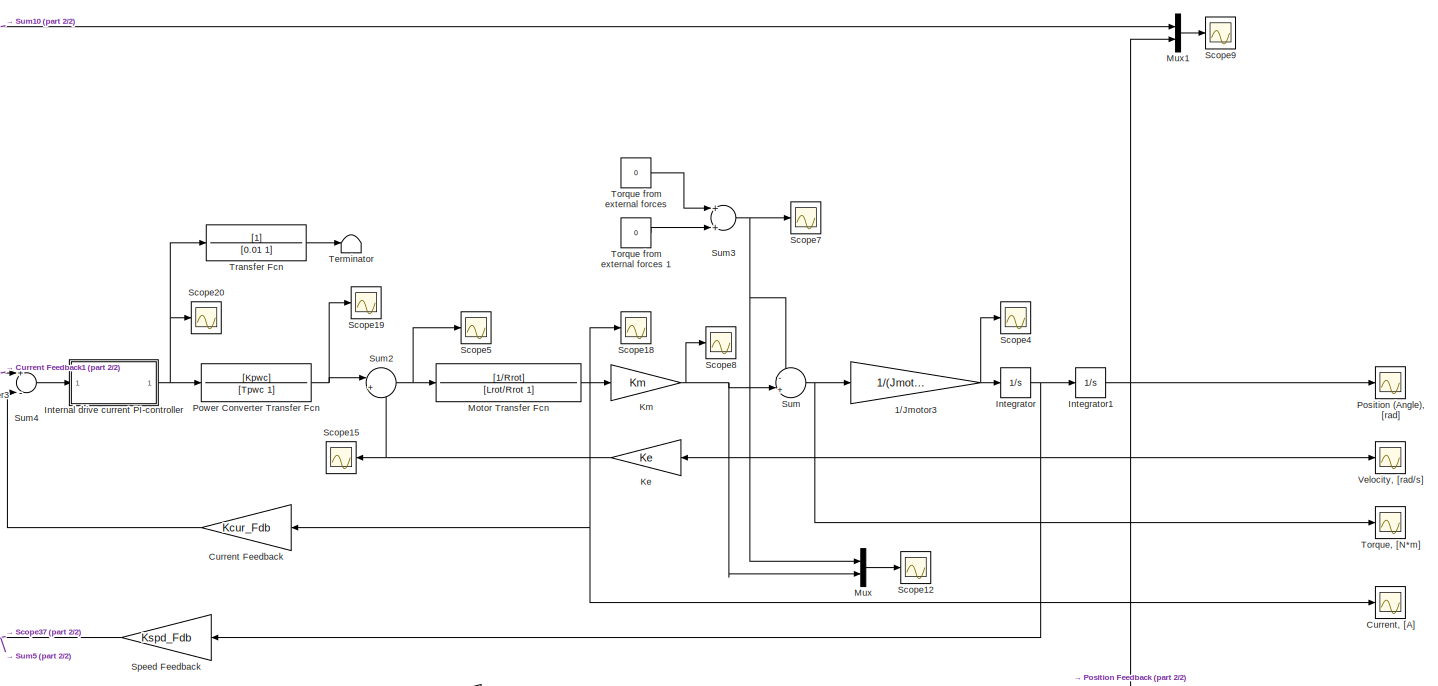
[diagram: root canvas - part 1/2, center side, full height]
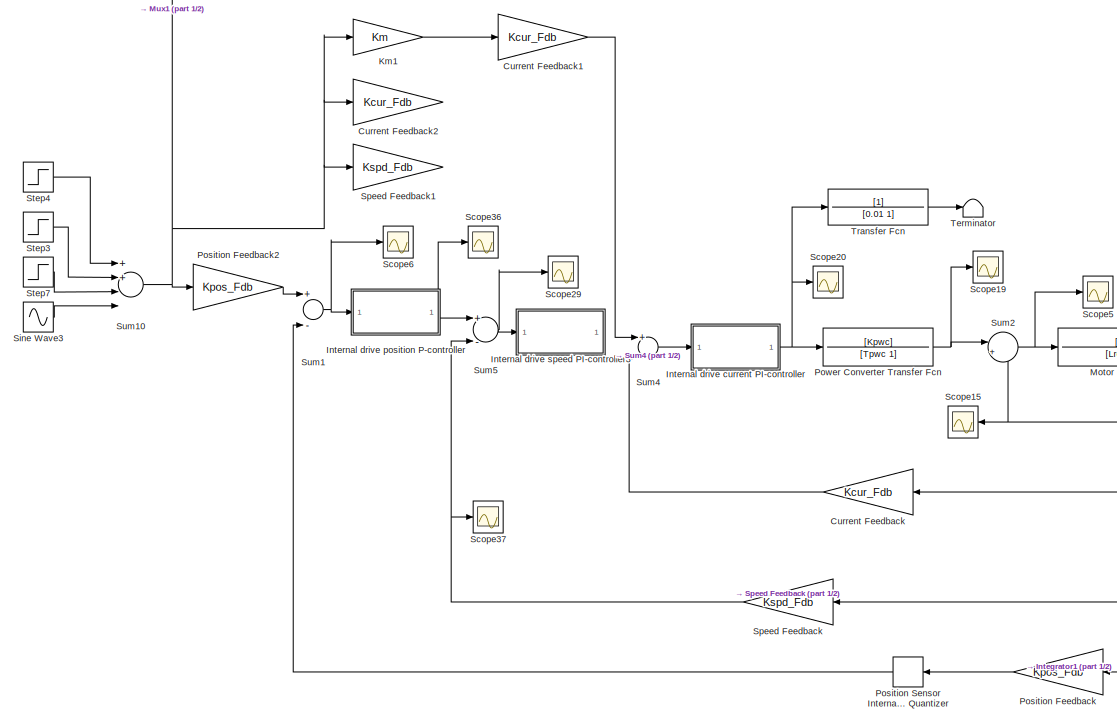
[diagram: root canvas - part 2/2, left side, full height]
MODEL slx_8d1d26c20b0a
KIND model
CONFIG AbsTol = auto
CONFIG EnableMultiTasking = on
CONFIG FixedStep = auto
CONFIG MaxStep = auto
CONFIG MinStep = auto
CONFIG RelTol = 1e-3
CONFIG SampleTimeConstraint = Unconstrained
CONFIG Solver = VariableStepAuto
CONFIG SolverName = VariableStepAuto
CONFIG StartTime = 0.0
CONFIG StopTime = 1
BLOCK [Gain] 1//Jmotor3
  Gain = 1/(Jmotor+Jload/i^2)
  SaturateOnIntegerOverflow = off
BLOCK [Gain] Current Feedback
  Gain = Kcur_Fdb
  SaturateOnIntegerOverflow = off
BLOCK [Gain] Current Feedback1
  Gain = Kcur_Fdb
  SaturateOnIntegerOverflow = off
BLOCK [Gain] Current Feedback2
  Gain = Kcur_Fdb
  SaturateOnIntegerOverflow = off
BLOCK [Scope] Current, [A]
  NumInputPorts = 1
  Ports = [1]
  ScopeSpecificationString = Simulink.scopes.TimeScopeBlockCfg('CurrentConfiguration', extmgr.ConfigurationSet(extmgr.Configuration('Core','General UI',true),extmgr.Configuration('Core','Source UI',true),extmgr.Configuration('Sources','WiredSimulink',true,'DataLoggingVariableName','ScopeData2','DataLoggingSaveFormat','Array','DataLoggingDecimation','1'),extmgr.Configuration('Visuals','Time Domain',true,'SerializedDisplays',{s...<+1515ch>
BLOCK [Integrator] Integrator
  Ports = [1, 1]
BLOCK [Integrator] Integrator1
  Ports = [1, 1]
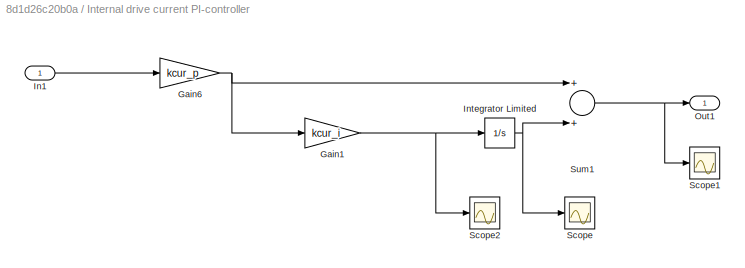
BLOCK [SubSystem] Internal drive current PI-controller
  Ports = [1, 1]
  RequestExecContextInheritance = off
  Variant = off
BLOCK [Gain] Internal drive current PI-controller/Gain1
  Gain = kcur_i
  SaturateOnIntegerOverflow = off
BLOCK [Gain] Internal drive current PI-controller/Gain6
  Gain = kcur_p
  SaturateOnIntegerOverflow = off
BLOCK [Inport] Internal drive current PI-controller/In1
  IconDisplay = Port number
BLOCK [Integrator] Internal drive current PI-controller/Integrator Limited
  LowerSaturationLimit = 0
  Ports = [1, 1]
  UpperSaturationLimit = 0
BLOCK [Outport] Internal drive current PI-controller/Out1
  IconDisplay = Port number
BLOCK [Scope] Internal drive current PI-controller/Scope
  NumInputPorts = 1
  Ports = [1]
  ScopeSpecificationString = Simulink.scopes.TimeScopeBlockCfg('CurrentConfiguration', extmgr.ConfigurationSet(extmgr.Configuration('Core','General UI',true),extmgr.Configuration('Core','Source UI',true),extmgr.Configuration('Sources','WiredSimulink',true,'DataLoggingVariableName','ScopeData1'),extmgr.Configuration('Visuals','Time Domain',true,'SerializedDisplays',{struct('MinYLimReal','-0.00229','MaxYLimReal','0.02063','YLab...<+1421ch>
BLOCK [Scope] Internal drive current PI-controller/Scope1
  NumInputPorts = 1
  Ports = [1]
  ScopeSpecificationString = C++SS(StrPVP('SaveName','ScopeData1'),StrPVP('SaveName','ScopeData2'),StrPVP('LimitDataPoints','on'),StrPVP('DataFormat','Array'),StrPVP('Decimation','1'),StrPVP('BlockParamSampleInput','off'))
BLOCK [Scope] Internal drive current PI-controller/Scope2
  NumInputPorts = 1
  Ports = [1]
  ScopeSpecificationString = Simulink.scopes.TimeScopeBlockCfg('CurrentConfiguration', extmgr.ConfigurationSet(extmgr.Configuration('Core','General UI',true),extmgr.Configuration('Core','Source UI',true),extmgr.Configuration('Sources','WiredSimulink',true,'DataLoggingVariableName','ScopeData3'),extmgr.Configuration('Visuals','Time Domain',true,'SerializedDisplays',{struct('MinYLimReal','-4.09256','MaxYLimReal','36.82603','YLa...<+1412ch>
BLOCK [Sum] Internal drive current PI-controller/Sum1
  InputSameDT = off
  OutDataTypeStr = Inherit: Inherit via internal rule
  Ports = [2, 1]
  SaturateOnIntegerOverflow = off
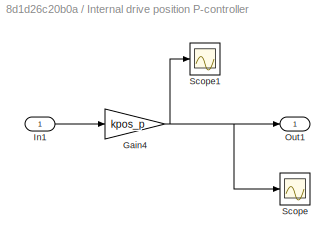
BLOCK [SubSystem] Internal drive position P-controller
  Ports = [1, 1]
  RequestExecContextInheritance = off
  Variant = off
BLOCK [Gain] Internal drive position P-controller/Gain4
  Gain = kpos_p
  SaturateOnIntegerOverflow = off
BLOCK [Inport] Internal drive position P-controller/In1
  IconDisplay = Port number
BLOCK [Outport] Internal drive position P-controller/Out1
  IconDisplay = Port number
BLOCK [Scope] Internal drive position P-controller/Scope
  NumInputPorts = 1
  Ports = [1]
  ScopeSpecificationString = Simulink.scopes.TimeScopeBlockCfg('CurrentConfiguration', extmgr.ConfigurationSet(extmgr.Configuration('Core','General UI',true),extmgr.Configuration('Core','Source UI',true),extmgr.Configuration('Sources','WiredSimulink',true,'DataLoggingVariableName','ScopeData1'),extmgr.Configuration('Visuals','Time Domain',true,'SerializedDisplays',{struct('MinYLimReal','-39.63807','MaxYLimReal','98.54438','YL...<+1375ch>
BLOCK [Scope] Internal drive position P-controller/Scope1
  NumInputPorts = 1
  Ports = [1]
  ScopeSpecificationString = Simulink.scopes.TimeScopeBlockCfg('CurrentConfiguration', extmgr.ConfigurationSet(extmgr.Configuration('Core','General UI',true),extmgr.Configuration('Core','Source UI',true),extmgr.Configuration('Sources','WiredSimulink',true,'DataLoggingVariableName','ScopeData2'),extmgr.Configuration('Visuals','Time Domain',true,'SerializedDisplays',{struct('MinYLimReal','-39.63807','MaxYLimReal','98.54438','YL...<+1395ch>
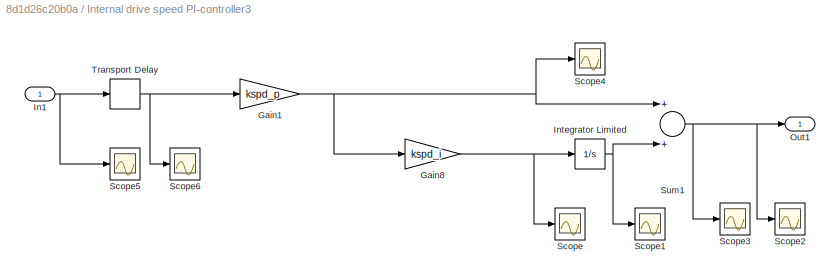
BLOCK [SubSystem] Internal drive speed PI-controller3
  Ports = [1, 1]
  RequestExecContextInheritance = off
  Variant = off
BLOCK [Gain] Internal drive speed PI-controller3/Gain1
  Gain = kspd_p
  SaturateOnIntegerOverflow = off
BLOCK [Gain] Internal drive speed PI-controller3/Gain8
  Gain = kspd_i
  SaturateOnIntegerOverflow = off
BLOCK [Inport] Internal drive speed PI-controller3/In1
  IconDisplay = Port number
BLOCK [Integrator] Internal drive speed PI-controller3/Integrator Limited
  LowerSaturationLimit = 0
  Ports = [1, 1]
  UpperSaturationLimit = 0
BLOCK [Outport] Internal drive speed PI-controller3/Out1
  IconDisplay = Port number
BLOCK [Scope] Internal drive speed PI-controller3/Scope
  NumInputPorts = 1
  Ports = [1]
  ScopeSpecificationString = Simulink.scopes.TimeScopeBlockCfg('CurrentConfiguration', extmgr.ConfigurationSet(extmgr.Configuration('Core','General UI',true),extmgr.Configuration('Core','Source UI',true),extmgr.Configuration('Sources','WiredSimulink',true,'DataLoggingVariableName','ScopeData1'),extmgr.Configuration('Visuals','Time Domain',true,'SerializedDisplays',{struct('MinYLimReal','-40519325.10183','MaxYLimReal','3370524...<+1528ch>
BLOCK [Scope] Internal drive speed PI-controller3/Scope1
  NumInputPorts = 1
  Ports = [1]
  ScopeSpecificationString = Simulink.scopes.TimeScopeBlockCfg('CurrentConfiguration', extmgr.ConfigurationSet(extmgr.Configuration('Core','General UI',true),extmgr.Configuration('Core','Source UI',true),extmgr.Configuration('Sources','WiredSimulink',true,'DataLoggingVariableName','ScopeData2'),extmgr.Configuration('Visuals','Time Domain',true,'SerializedDisplays',{struct('MinYLimReal','-6631.10607','MaxYLimReal','26408.60441...<+1459ch>
BLOCK [Scope] Internal drive speed PI-controller3/Scope2
  NumInputPorts = 1
  Ports = [1]
  ScopeSpecificationString = Simulink.scopes.TimeScopeBlockCfg('CurrentConfiguration', extmgr.ConfigurationSet(extmgr.Configuration('Core','General UI',true),extmgr.Configuration('Core','Source UI',true),extmgr.Configuration('Sources','WiredSimulink',true,'DataLoggingVariableName','ScopeData3'),extmgr.Configuration('Visuals','Time Domain',true,'SerializedDisplays',{struct('MinYLimReal','-113408.48164','MaxYLimReal','184172.18...<+1463ch>
BLOCK [Scope] Internal drive speed PI-controller3/Scope3
  NumInputPorts = 1
  Ports = [1]
  ScopeSpecificationString = Simulink.scopes.TimeScopeBlockCfg('CurrentConfiguration', extmgr.ConfigurationSet(extmgr.Configuration('Core','General UI',true),extmgr.Configuration('Core','Source UI',true),extmgr.Configuration('Sources','WiredSimulink',true,'DataLoggingVariableName','ScopeData4'),extmgr.Configuration('Visuals','Time Domain',true,'SerializedDisplays',{struct('MinYLimReal','-10028.39805','MaxYLimReal','10776.8045...<+1451ch>
BLOCK [Scope] Internal drive speed PI-controller3/Scope4
  NumInputPorts = 1
  Ports = [1]
  ScopeSpecificationString = Simulink.scopes.TimeScopeBlockCfg('CurrentConfiguration', extmgr.ConfigurationSet(extmgr.Configuration('Core','General UI',true),extmgr.Configuration('Core','Source UI',true),extmgr.Configuration('Sources','WiredSimulink',true,'DataLoggingVariableName','ScopeData5'),extmgr.Configuration('Visuals','Time Domain',true,'SerializedDisplays',{struct('MinYLimReal','-59.77786','MaxYLimReal','71.2961','YLa...<+1438ch>
BLOCK [Scope] Internal drive speed PI-controller3/Scope5
  NumInputPorts = 1
  Ports = [1]
  ScopeSpecificationString = Simulink.scopes.TimeScopeBlockCfg('CurrentConfiguration', extmgr.ConfigurationSet(extmgr.Configuration('Core','General UI',true),extmgr.Configuration('Core','Source UI',true),extmgr.Configuration('Sources','WiredSimulink',true,'DataLoggingVariableName','ScopeData1'),extmgr.Configuration('Visuals','Time Domain',true,'SerializedDisplays',{struct('MinYLimReal','-1729.19912','MaxYLimReal','1437.96848'...<+1428ch>
BLOCK [Scope] Internal drive speed PI-controller3/Scope6
  NumInputPorts = 1
  Ports = [1]
  ScopeSpecificationString = Simulink.scopes.TimeScopeBlockCfg('CurrentConfiguration', extmgr.ConfigurationSet(extmgr.Configuration('Core','General UI',true),extmgr.Configuration('Core','Source UI',true),extmgr.Configuration('Sources','WiredSimulink',true,'DataLoggingVariableName','ScopeData2'),extmgr.Configuration('Visuals','Time Domain',true,'SerializedDisplays',{struct('MinYLimReal','-1261.24094','MaxYLimReal','1126.36046'...<+1421ch>
BLOCK [Sum] Internal drive speed PI-controller3/Sum1
  InputSameDT = off
  OutDataTypeStr = Inherit: Inherit via internal rule
  Ports = [2, 1]
  SaturateOnIntegerOverflow = off
BLOCK [TransportDelay] Internal drive speed PI-controller3/Transport Delay
  DelayTime = Ts
  Ports = [1, 1]
BLOCK [Gain] Ke
  Gain = Ke
  SaturateOnIntegerOverflow = off
BLOCK [Gain] Km
  Gain = Km
  SaturateOnIntegerOverflow = off
BLOCK [Gain] Km1
  Gain = Km
  SaturateOnIntegerOverflow = off
BLOCK [TransferFcn] Motor Transfer Fcn
  Denominator = [Lrot/Rrot 1]
  Numerator = [1/Rrot]
BLOCK [Mux] Mux
  DisplayOption = bar
  Inputs = 2
  Ports = [2, 1]
BLOCK [Mux] Mux1
  DisplayOption = bar
  Inputs = 2
  Ports = [2, 1]
BLOCK [Scope] Position (Angle), [rad]
  NumInputPorts = 1
  Ports = [1]
  ScopeSpecificationString = Simulink.scopes.TimeScopeBlockCfg('CurrentConfiguration', extmgr.ConfigurationSet(extmgr.Configuration('Core','General UI',true),extmgr.Configuration('Core','Source UI',true),extmgr.Configuration('Sources','WiredSimulink',true,'DataLoggingVariableName','ScopeData4'),extmgr.Configuration('Visuals','Time Domain',true,'SerializedDisplays',{struct('MinYLimReal','0.98468','MaxYLimReal','1.02088','YLabe...<+1441ch>
BLOCK [Gain] Position Feedback
  Gain = Kpos_Fdb
  SaturateOnIntegerOverflow = off
BLOCK [Gain] Position Feedback2
  Gain = Kpos_Fdb
  SaturateOnIntegerOverflow = off
BLOCK [Quantizer] Position Sensor Internal Drive Quantizer
  QuantizationInterval = 1/Kpos_Fdb
BLOCK [TransferFcn] Power Converter Transfer Fcn
  Denominator = [Tpwc 1]
  Numerator = [Kpwc]
BLOCK [Scope] Scope12
  NumInputPorts = 1
  Ports = [1]
  ScopeSpecificationString = Simulink.scopes.TimeScopeBlockCfg('CurrentConfiguration', extmgr.ConfigurationSet(extmgr.Configuration('Core','General UI',true),extmgr.Configuration('Core','Source UI',true),extmgr.Configuration('Sources','WiredSimulink',true,'DataLoggingVariableName','ScopeData7','DataLoggingSaveFormat','Array','DataLoggingDecimation','1','DataLoggingDecimateData',true),extmgr.Configuration('Visuals','Time Domai...<+1692ch>
BLOCK [Scope] Scope15
  NumInputPorts = 1
  Ports = [1]
  ScopeSpecificationString = Simulink.scopes.TimeScopeBlockCfg('CurrentConfiguration', extmgr.ConfigurationSet(extmgr.Configuration('Core','General UI',true),extmgr.Configuration('Core','Source UI',true),extmgr.Configuration('Sources','WiredSimulink',true,'DataLoggingVariableName','ScopeData2'),extmgr.Configuration('Visuals','Time Domain',true,'SerializedDisplays',{struct('MinYLimReal','-10.35261','MaxYLimReal','76.73442','YL...<+1392ch>
BLOCK [Scope] Scope18
  NumInputPorts = 1
  Ports = [1]
  ScopeSpecificationString = Simulink.scopes.TimeScopeBlockCfg('CurrentConfiguration', extmgr.ConfigurationSet(extmgr.Configuration('Core','General UI',true),extmgr.Configuration('Core','Source UI',true),extmgr.Configuration('Sources','WiredSimulink',true,'DataLoggingVariableName','ScopeData26','DataLoggingSaveFormat','Array','DataLoggingDecimation','1','DataLoggingDecimateData',true),extmgr.Configuration('Visuals','Time Doma...<+1704ch>
BLOCK [Scope] Scope19
  NumInputPorts = 1
  Ports = [1]
  ScopeSpecificationString = C++SS(StrPVP('Location','[10, 60, 1924, 1034]'),StrPVP('Open','off'),MxPVP('AxesTitles',53,'struct(''axes1'',''%<SignalLabel>'')'),MxPVP('ScopeGraphics',56,'struct(''FigureColor'',''[0.5 0.5 0.5]'',''AxesColor'',''[0 0 0]'',''AxesTickColor'',''[1 1 1]'',''LineColors'',''[1 1 0;1 0 1;0 1 1;1 0 0;0 1 0;0 0 1]'',''LineStyles'',''-|-|-|-|-|-'',''LineWidths'',''[0.5 0.5 0.5 0.5 0.5 0.5]'',''MarkerStyle...<+241ch>
BLOCK [Scope] Scope20
  NumInputPorts = 1
  Ports = [1]
  ScopeSpecificationString = C++SS(StrPVP('SaveName','ScopeData1'),StrPVP('LimitDataPoints','on'),StrPVP('DataFormat','Array'),StrPVP('Decimation','1'),StrPVP('BlockParamSampleInput','off'))
BLOCK [Scope] Scope29
  NumInputPorts = 1
  Ports = [1]
  ScopeSpecificationString = C++SS(StrPVP('SaveName','ScopeData3'),StrPVP('LimitDataPoints','on'),StrPVP('DataFormat','Array'),StrPVP('Decimation','1'),StrPVP('BlockParamSampleInput','off'))
BLOCK [Scope] Scope36
  NumInputPorts = 1
  Ports = [1]
  ScopeSpecificationString = Simulink.scopes.TimeScopeBlockCfg('CurrentConfiguration', extmgr.ConfigurationSet(extmgr.Configuration('Core','General UI',true),extmgr.Configuration('Core','Source UI',true),extmgr.Configuration('Sources','WiredSimulink',true,'DataLoggingVariableName','ScopeData5','DataLoggingSaveFormat','Array','DataLoggingDecimation','1','DataLoggingDecimateData',true),extmgr.Configuration('Visuals','Time Domai...<+1545ch>
BLOCK [Scope] Scope37
  NumInputPorts = 1
  Ports = [1]
  ScopeSpecificationString = C++SS(StrPVP('SaveName','ScopeData6'),StrPVP('LimitDataPoints','on'),StrPVP('DataFormat','Array'),StrPVP('Decimation','1'),StrPVP('BlockParamSampleInput','off'))
BLOCK [Scope] Scope4
  NumInputPorts = 1
  Ports = [1]
  ScopeSpecificationString = Simulink.scopes.TimeScopeBlockCfg('CurrentConfiguration', extmgr.ConfigurationSet(extmgr.Configuration('Core','General UI',true),extmgr.Configuration('Core','Source UI',true),extmgr.Configuration('Sources','WiredSimulink',true,'DataLoggingVariableName','ScopeData1','DataLoggingSaveFormat','Array','DataLoggingDecimation','1','DataLoggingDecimateData',true),extmgr.Configuration('Visuals','Time Domai...<+2218ch>
BLOCK [Scope] Scope5
  NumInputPorts = 1
  Ports = [1]
  ScopeSpecificationString = Simulink.scopes.TimeScopeBlockCfg('CurrentConfiguration', extmgr.ConfigurationSet(extmgr.Configuration('Core','General UI',true),extmgr.Configuration('Core','Source UI',true),extmgr.Configuration('Sources','WiredSimulink',true,'DataLoggingVariableName','ScopeData31','DataLoggingSaveFormat','Array','DataLoggingDecimation','1','DataLoggingDecimateData',true),extmgr.Configuration('Visuals','Time Doma...<+1702ch>
BLOCK [Scope] Scope6
  NumInputPorts = 1
  Ports = [1]
  ScopeSpecificationString = C++SS(StrPVP('SaveName','ScopeData7'),StrPVP('LimitDataPoints','on'),StrPVP('DataFormat','Array'),StrPVP('Decimation','1'),StrPVP('BlockParamSampleInput','off'))
BLOCK [Scope] Scope7
  NumInputPorts = 1
  Ports = [1]
  ScopeSpecificationString = Simulink.scopes.TimeScopeBlockCfg('CurrentConfiguration', extmgr.ConfigurationSet(extmgr.Configuration('Core','General UI',true),extmgr.Configuration('Core','Source UI',true),extmgr.Configuration('Sources','WiredSimulink',true,'DataLoggingVariableName','ScopeData2','DataLoggingSaveFormat','Array','DataLoggingDecimation','1','DataLoggingDecimateData',true),extmgr.Configuration('Visuals','Time Domai...<+2318ch>
BLOCK [Scope] Scope8
  NumInputPorts = 1
  Ports = [1]
  ScopeSpecificationString = Simulink.scopes.TimeScopeBlockCfg('CurrentConfiguration', extmgr.ConfigurationSet(extmgr.Configuration('Core','General UI',true),extmgr.Configuration('Core','Source UI',true),extmgr.Configuration('Sources','WiredSimulink',true,'DataLoggingVariableName','ScopeData24','DataLoggingSaveFormat','Array','DataLoggingDecimation','1','DataLoggingDecimateData',true),extmgr.Configuration('Visuals','Time Doma...<+1688ch>
BLOCK [Scope] Scope9
  NumInputPorts = 1
  Ports = [1]
  ScopeSpecificationString = Simulink.scopes.TimeScopeBlockCfg('CurrentConfiguration', extmgr.ConfigurationSet(extmgr.Configuration('Core','General UI',true),extmgr.Configuration('Core','Source UI',true),extmgr.Configuration('Sources','WiredSimulink',true,'DataLoggingVariableName','ScopeData1'),extmgr.Configuration('Visuals','Time Domain',true,'SerializedDisplays',{struct('MinYLimReal','-0.125','MaxYLimReal','1.125','YLabelRe...<+1451ch>
BLOCK [Sin] Sine Wave3
  Amplitude = Ampl
  Commented = on
  Frequency = Wsr
  Ports = [0, 1]
  SampleTime = 0
BLOCK [Gain] Speed Feedback
  Gain = Kspd_Fdb
  SaturateOnIntegerOverflow = off
BLOCK [Gain] Speed Feedback1
  Commented = on
  Gain = Kspd_Fdb
  SaturateOnIntegerOverflow = off
BLOCK [Step] Step3
  After = -1
  Commented = on
  SampleTime = 0
  Time = 2
BLOCK [Step] Step4
  SampleTime = 0
  Time = 0
BLOCK [Step] Step7
  Commented = on
  SampleTime = 0
  Time = 2
BLOCK [Sum] Sum
  IconShape = round
  InputSameDT = off
  Inputs = -|+||
  OutDataTypeStr = Inherit: Inherit via internal rule
  Ports = [2, 1]
  SaturateOnIntegerOverflow = off
BLOCK [Sum] Sum1
  InputSameDT = off
  Inputs = +-
  OutDataTypeStr = Inherit: Inherit via internal rule
  Ports = [2, 1]
  SaturateOnIntegerOverflow = off
BLOCK [Sum] Sum10
  InputSameDT = off
  Inputs = 4
  OutDataTypeStr = Inherit: Inherit via internal rule
  Ports = [4, 1]
  SaturateOnIntegerOverflow = off
BLOCK [Sum] Sum2
  IconShape = round
  InputSameDT = off
  Inputs = |+-
  OutDataTypeStr = Inherit: Inherit via internal rule
  Ports = [2, 1]
  SaturateOnIntegerOverflow = off
BLOCK [Sum] Sum3
  Commented = on
  InputSameDT = off
  Inputs = 2
  OutDataTypeStr = Inherit: Inherit via internal rule
  Ports = [2, 1]
  SaturateOnIntegerOverflow = off
BLOCK [Sum] Sum4
  InputSameDT = off
  Inputs = +-
  OutDataTypeStr = Inherit: Inherit via internal rule
  Ports = [2, 1]
  SaturateOnIntegerOverflow = off
BLOCK [Sum] Sum5
  InputSameDT = off
  Inputs = +-
  OutDataTypeStr = Inherit: Inherit via internal rule
  Ports = [2, 1]
  SaturateOnIntegerOverflow = off
BLOCK [Terminator] Terminator
BLOCK [Constant] Torque from external forces 
  Commented = on
  Value = 0
BLOCK [Constant] Torque from external forces 1
  Commented = on
  Value = 0
BLOCK [Scope] Torque, [N*m]
  NumInputPorts = 1
  Ports = [1]
  ScopeSpecificationString = Simulink.scopes.TimeScopeBlockCfg('CurrentConfiguration', extmgr.ConfigurationSet(extmgr.Configuration('Core','General UI',true),extmgr.Configuration('Core','Source UI',true),extmgr.Configuration('Sources','WiredSimulink',true,'DataLoggingVariableName','ScopeData3','DataLoggingSaveFormat','Array','DataLoggingDecimation','1','DataLoggingDecimateData',true),extmgr.Configuration('Visuals','Time Domai...<+1682ch>
BLOCK [TransferFcn] Transfer Fcn
  Denominator = [0.01 1]
BLOCK [Scope] Velocity, [rad//s]
  NumInputPorts = 1
  Ports = [1]
  ScopeSpecificationString = Simulink.scopes.TimeScopeBlockCfg('CurrentConfiguration', extmgr.ConfigurationSet(extmgr.Configuration('Core','General UI',true),extmgr.Configuration('Core','Source UI',true),extmgr.Configuration('Sources','WiredSimulink',true,'DataLoggingVariableName','ScopeData1','DataLoggingSaveFormat','Array','DataLoggingDecimation','1','DataLoggingDecimateData',true),extmgr.Configuration('Visuals','Time Domai...<+1533ch>
NET 1//Jmotor3:1 -> Integrator:1, Scope4:1
LINE Current Feedback1:1 -> Sum4:1
LINE Current Feedback:1 -> Sum4:2
NET Integrator1:1 -> Mux1:2, Position (Angle), [rad]:1, Position Feedback:1
NET Integrator:1 -> Integrator1:1, Ke:1, Speed Feedback:1, Velocity, [rad//s]:1
NET Internal drive current PI-controller/Gain1:1 -> Internal drive current PI-controller/Integrator Limited:1, Internal drive current PI-controller/Scope2:1
NET Internal drive current PI-controller/Gain6:1 -> Internal drive current PI-controller/Gain1:1, Internal drive current PI-controller/Sum1:1
LINE Internal drive current PI-controller/In1:1 -> Internal drive current PI-controller/Gain6:1
NET Internal drive current PI-controller/Integrator Limited:1 -> Internal drive current PI-controller/Scope:1, Internal drive current PI-controller/Sum1:2
NET Internal drive current PI-controller/Sum1:1 -> Internal drive current PI-controller/Out1:1, Internal drive current PI-controller/Scope1:1
NET Internal drive current PI-controller:1 -> Power Converter Transfer Fcn:1, Scope20:1, Transfer Fcn:1
NET Internal drive position P-controller/Gain4:1 -> Internal drive position P-controller/Out1:1, Internal drive position P-controller/Scope1:1, Internal drive position P-controller/Scope:1
LINE Internal drive position P-controller/In1:1 -> Internal drive position P-controller/Gain4:1
NET Internal drive position P-controller:1 -> Scope36:1, Sum5:1
NET Internal drive speed PI-controller3/Gain1:1 -> Internal drive speed PI-controller3/Gain8:1, Internal drive speed PI-controller3/Scope4:1, Internal drive speed PI-controller3/Sum1:1
NET Internal drive speed PI-controller3/Gain8:1 -> Internal drive speed PI-controller3/Integrator Limited:1, Internal drive speed PI-controller3/Scope:1
NET Internal drive speed PI-controller3/In1:1 -> Internal drive speed PI-controller3/Scope5:1, Internal drive speed PI-controller3/Transport Delay:1
NET Internal drive speed PI-controller3/Integrator Limited:1 -> Internal drive speed PI-controller3/Scope1:1, Internal drive speed PI-controller3/Sum1:2
NET Internal drive speed PI-controller3/Sum1:1 -> Internal drive speed PI-controller3/Out1:1, Internal drive speed PI-controller3/Scope2:1, Internal drive speed PI-controller3/Scope3:1
NET Internal drive speed PI-controller3/Transport Delay:1 -> Internal drive speed PI-controller3/Gain1:1, Internal drive speed PI-controller3/Scope6:1
NET Ke:1 -> Scope15:1, Sum2:2
LINE Km1:1 -> Current Feedback1:1
NET Km:1 -> Mux:2, Scope8:1, Sum:2
NET Motor Transfer Fcn:1 -> Current Feedback:1, Current, [A]:1, Km:1, Scope18:1
LINE Mux1:1 -> Scope9:1
LINE Mux:1 -> Scope12:1
LINE Position Feedback2:1 -> Sum1:1
LINE Position Feedback:1 -> Position Sensor Internal Drive Quantizer:1
LINE Position Sensor Internal Drive Quantizer:1 -> Sum1:2
NET Power Converter Transfer Fcn:1 -> Scope19:1, Sum2:1
LINE Sine Wave3:1 -> Sum10:4
NET Speed Feedback:1 -> Scope37:1, Sum5:2
LINE Step3:1 -> Sum10:2
LINE Step4:1 -> Sum10:1
LINE Step7:1 -> Sum10:3
NET Sum10:1 -> Current Feedback2:1, Km1:1, Mux1:1, Position Feedback2:1, Speed Feedback1:1
NET Sum1:1 -> Internal drive position P-controller:1, Scope6:1
NET Sum2:1 -> Motor Transfer Fcn:1, Scope5:1
NET Sum3:1 -> Mux:1, Scope7:1, Sum:1
LINE Sum4:1 -> Internal drive current PI-controller:1
NET Sum5:1 -> Internal drive speed PI-controller3:1, Scope29:1
NET Sum:1 -> 1//Jmotor3:1, Torque, [N*m]:1
LINE Torque from external forces 1:1 -> Sum3:2
LINE Torque from external forces :1 -> Sum3:1
LINE Transfer Fcn:1 -> Terminator:1
note: NET lines group one-source signal fan-out (src -> all destinations, sorted); 1:1 wires keep LINE
